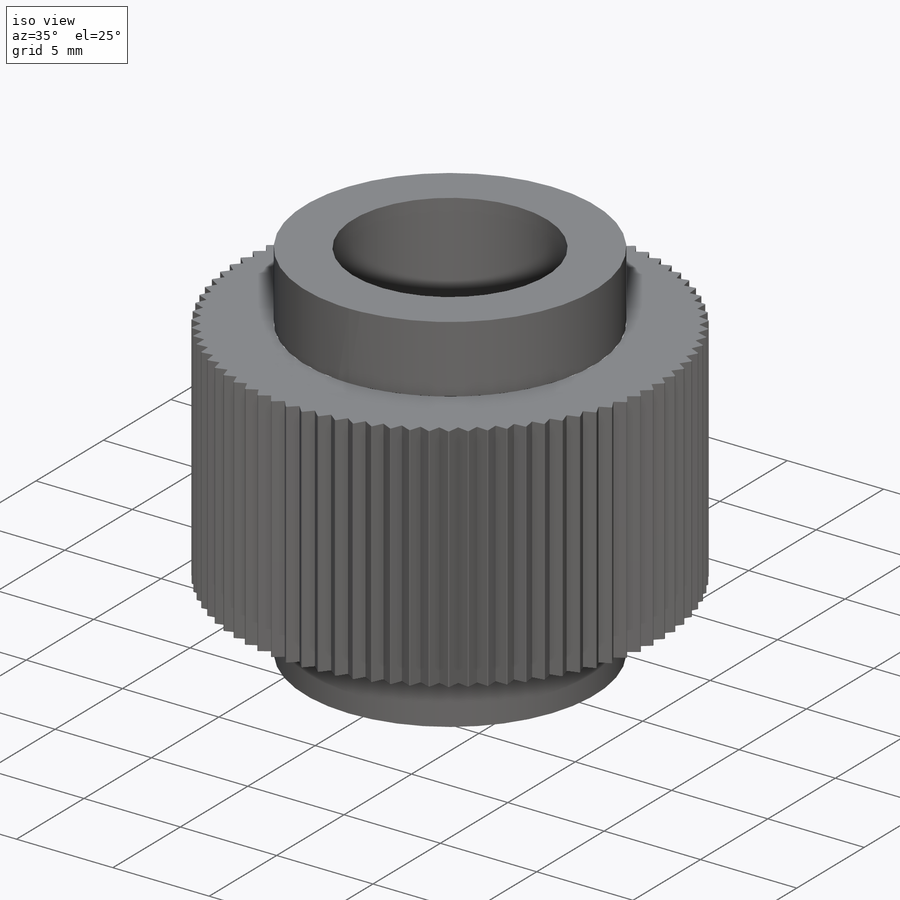
[diagram: iso view]
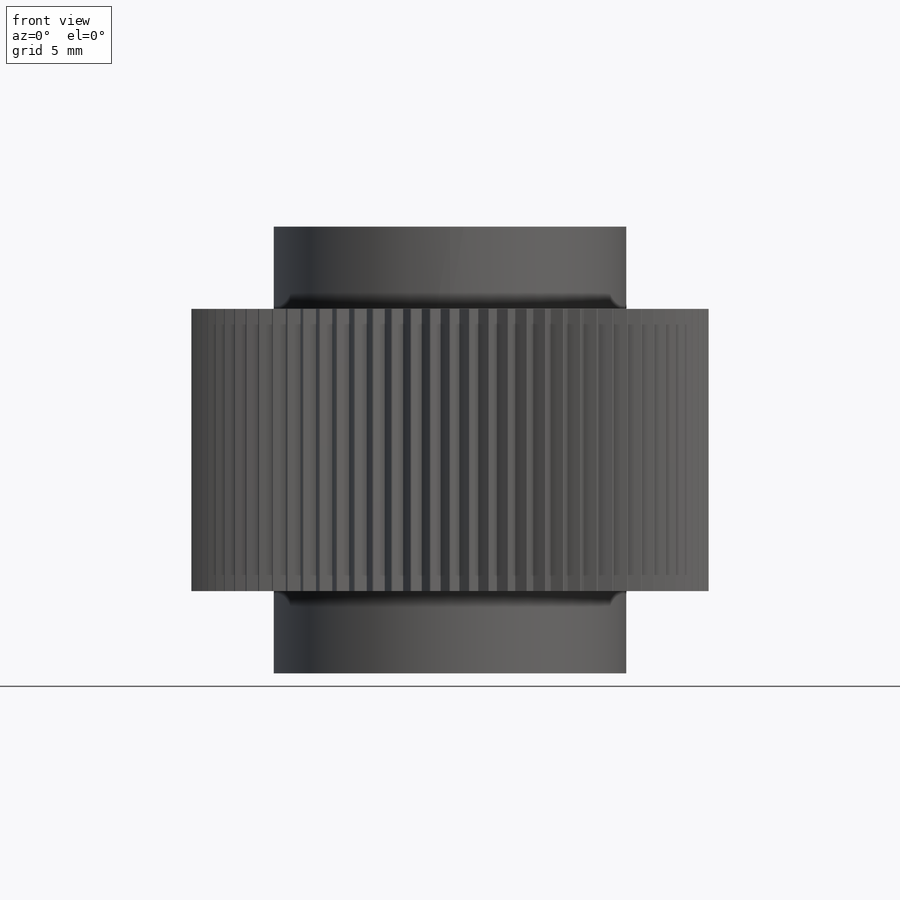
[diagram: front view]
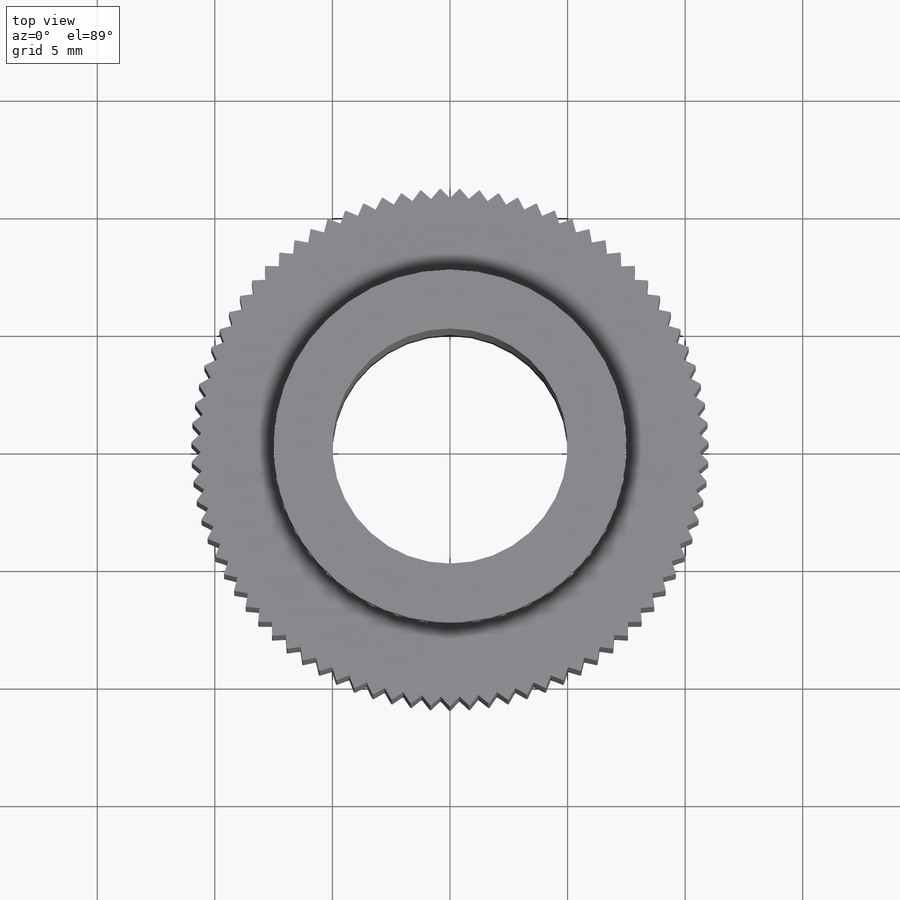
[diagram: top view]
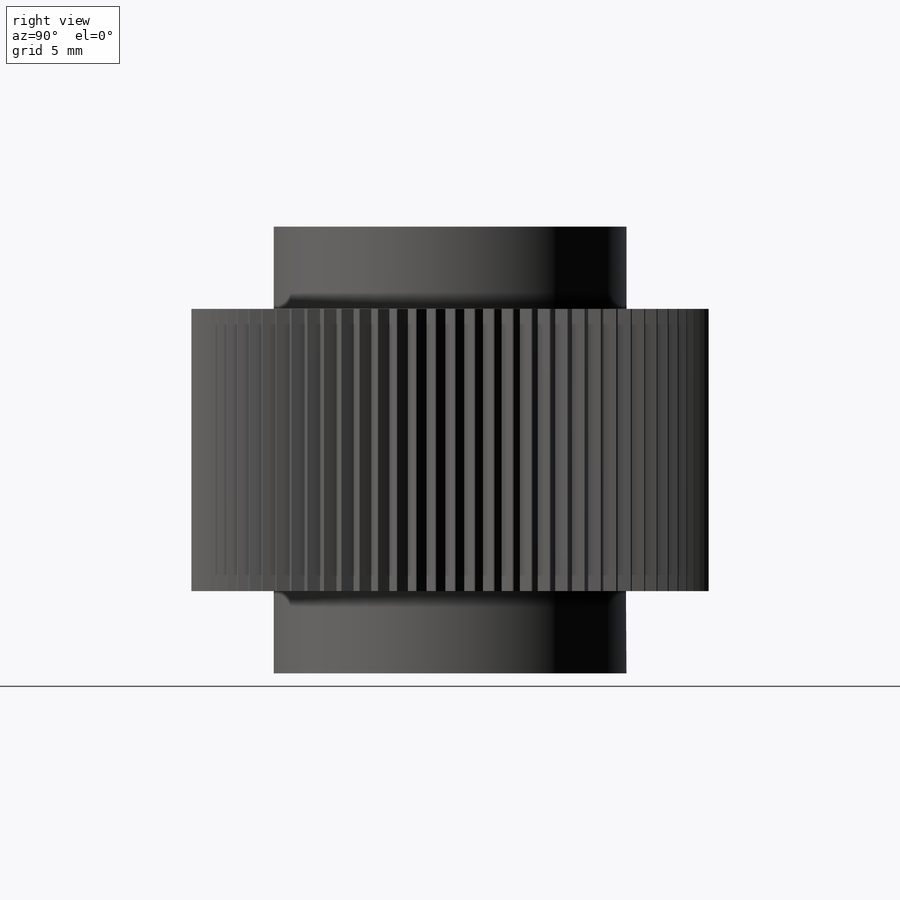
[diagram: right view]
SOLIDWORKS PART (.sldprt)
format: sldprt  version: not decoded by parser v0  size: 392,192 bytes
history: native  units: mm
features: sketch x5, plane x3, extrude x3, cut_extrude x2, material x1, pattern_circular x1 (+10 scaffold rows collapsed)
feature tree (25):
  scaffold x10  (default folders/planes/origin — collapsed)
  material  "材质 <未指定>"
  plane  "前视基准面"
  plane  "上视基准面"
  plane  "右视基准面"
  sketch  "草图1"  dims[D1=22.0mm]
  extrude  "凸台-拉伸1"  Depth=12mm
  sketch  "草图2"  dims[D1=15.0mm]
  extrude  "凸台-拉伸2"  Depth=3.5mm
  sketch  "草图3"  dims[D1=15.0mm]
  extrude  "凸台-拉伸3"  Depth=3.5mm
  sketch  "草图4"  dims[D1=10.0mm]
  cut_extrude  "切除-拉伸1"  [1 undecoded]
  sketch  "草图5"  dims[c1.D3=~0.650693mm c2.D3=90.0deg c2.D1=0.0mm c2.D2=0.4mm]
  cut_extrude  "切除-拉伸2"  [1 undecoded]
  pattern_circular  "阵列(圆周)1"  Count=83 Angle=360deg
decode coverage: 9 of 11 modeling features carry decoded parameters
note: ~ marks probable driven/reference dimensions
note: 2 parameter values undecoded
note: suppression state not decoded; provenance and decode notes live in map.json
